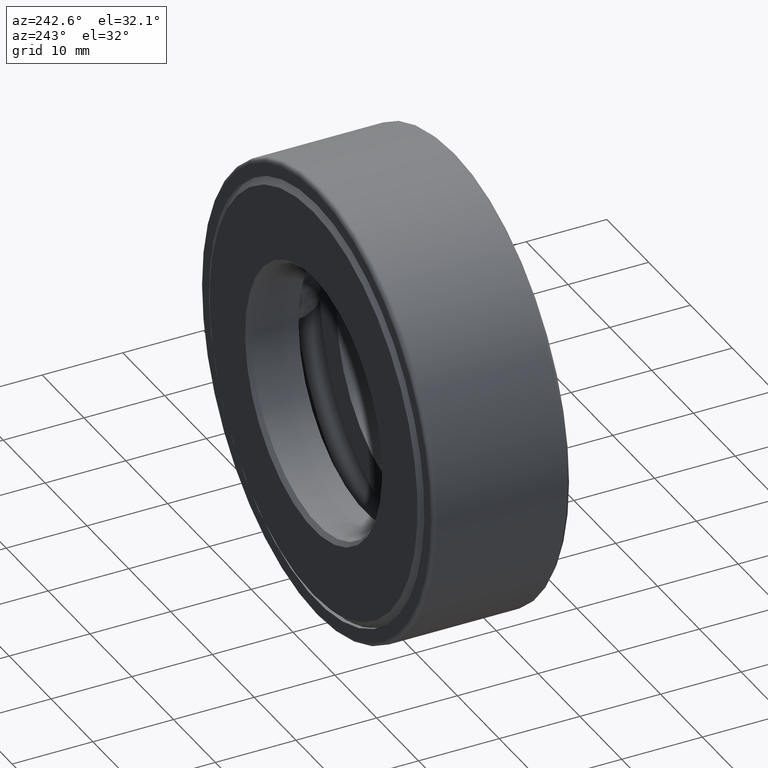
[diagram: clean part render]
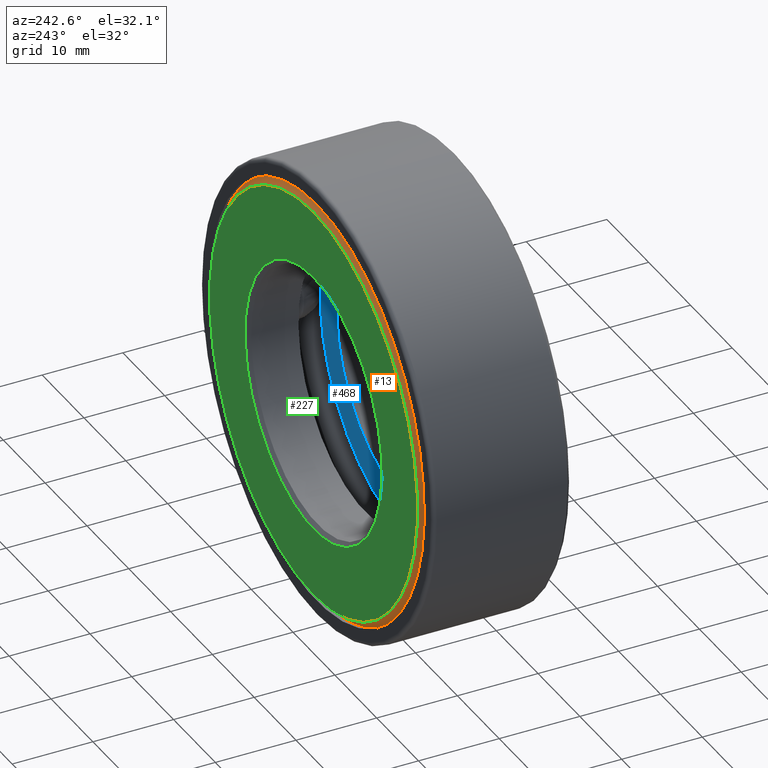
[diagram: same view with three faces highlighted in distinct colors, each labeled with its STEP entity id]
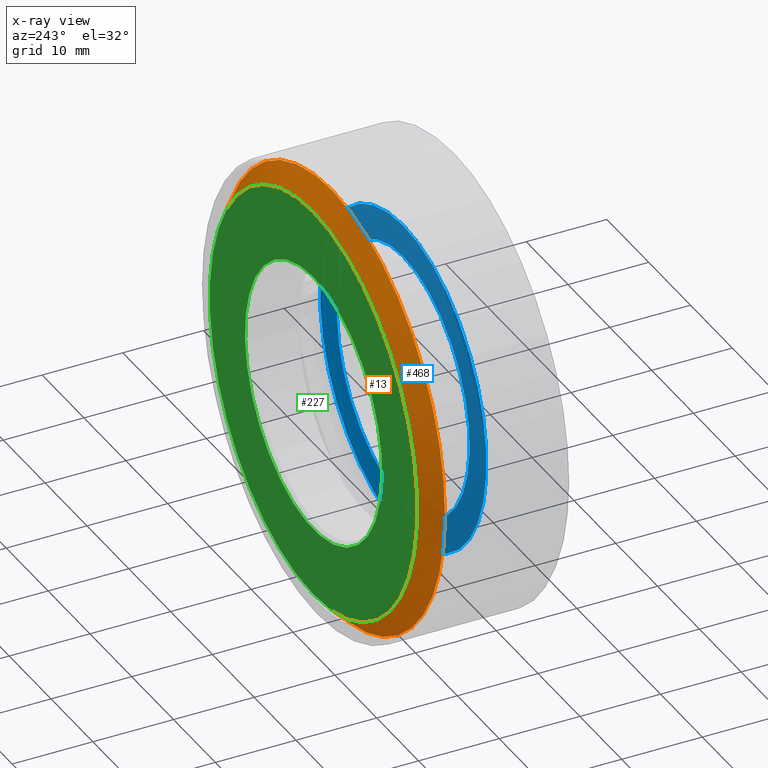
[diagram: x-ray of the same camera — body ghosted, the three highlighted faces saturated]
A machine part, auxiliary view with three faces highlighted in distinct colors.
The next image is the same camera in x-ray (body ghosted, the three faces saturated) — at least one of them is partly hidden behind the body in this view.
Their STEP definitions:

[orange] entity #13 — the highlighted conical surface has half-angle 45 deg.
#13 = ADVANCED_FACE ( 'NONE', ( #381, #456 ), #432, .T. ) ;
#73 = DIRECTION ( 'NONE',  ( 0.0000000000000000000, 0.0000000000000000000, 1.000000000000000000 ) ) ;
#79 = AXIS2_PLACEMENT_3D ( 'NONE', #439, #584, #73 ) ;
#86 = AXIS2_PLACEMENT_3D ( 'NONE', #525, #168, #513 ) ;
#104 = EDGE_CURVE ( 'NONE', #483, #483, #423, .T. ) ;
#118 = ORIENTED_EDGE ( 'NONE', *, *, #389, .T. ) ;
#168 = DIRECTION ( 'NONE',  ( -0.0000000000000000000, 1.000000000000000000, -0.0000000000000000000 ) ) ;
#207 = CIRCLE ( 'NONE', #86, 1.066749999999999900 ) ;
#240 = CARTESIAN_POINT ( 'NONE',  ( 0.0000000000000000000, 0.5995000000000001400, 1.066749999999999900 ) ) ;
#359 = EDGE_LOOP ( 'NONE', ( #118 ) ) ;
#365 = ORIENTED_EDGE ( 'NONE', *, *, #104, .F. ) ;
#376 = EDGE_LOOP ( 'NONE', ( #365 ) ) ;
#379 = CARTESIAN_POINT ( 'NONE',  ( 0.0000000000000000000, 0.6875000000000000000, 0.9787499999999997900 ) ) ;
#381 = FACE_OUTER_BOUND ( 'NONE', #359, .T. ) ;
#389 = EDGE_CURVE ( 'NONE', #488, #488, #207, .T. ) ;
#422 = CARTESIAN_POINT ( 'NONE',  ( 0.0000000000000000000, 0.6875000000000000000, 0.0000000000000000000 ) ) ;
#423 = CIRCLE ( 'NONE', #79, 0.9787499999999997900 ) ;
#432 = CONICAL_SURFACE ( 'NONE', #590, 0.9787499999999997900, 0.7853981633974490600 ) ;
#439 = CARTESIAN_POINT ( 'NONE',  ( 0.0000000000000000000, 0.6875000000000000000, 0.0000000000000000000 ) ) ;
#456 = FACE_BOUND ( 'NONE', #376, .T. ) ;
#483 = VERTEX_POINT ( 'NONE', #379 ) ;
#488 = VERTEX_POINT ( 'NONE', #240 ) ;
#513 = DIRECTION ( 'NONE',  ( 0.0000000000000000000, 0.0000000000000000000, 1.000000000000000000 ) ) ;
#517 = DIRECTION ( 'NONE',  ( 0.0000000000000000000, -1.000000000000000000, 0.0000000000000000000 ) ) ;
#525 = CARTESIAN_POINT ( 'NONE',  ( 0.0000000000000000000, 0.5995000000000001400, 0.0000000000000000000 ) ) ;
#527 = DIRECTION ( 'NONE',  ( 0.0000000000000000000, 0.0000000000000000000, -1.000000000000000000 ) ) ;
#584 = DIRECTION ( 'NONE',  ( -0.0000000000000000000, 1.000000000000000000, -0.0000000000000000000 ) ) ;
#590 = AXIS2_PLACEMENT_3D ( 'NONE', #422, #517, #527 ) ;

[blue] entity #468 — the highlighted planar face has unit normal (0, -1, 0).
#42 = CARTESIAN_POINT ( 'NONE',  ( -3.231681380517675000E-016, 0.2500000000000000600, 0.0000000000000000000 ) ) ;
#56 = EDGE_CURVE ( 'NONE', #250, #250, #549, .T. ) ;
#78 = ORIENTED_EDGE ( 'NONE', *, *, #222, .T. ) ;
#84 = DIRECTION ( 'NONE',  ( 0.0000000000000000000, -1.000000000000000000, 0.0000000000000000000 ) ) ;
#90 = FACE_BOUND ( 'NONE', #284, .T. ) ;
#134 = CARTESIAN_POINT ( 'NONE',  ( 0.0000000000000000000, 0.2499999999999999200, 0.7834999999999999700 ) ) ;
#160 = DIRECTION ( 'NONE',  ( 0.0000000000000000000, 0.0000000000000000000, 1.000000000000000000 ) ) ;
#166 = PLANE ( 'NONE',  #566 ) ;
#174 = CARTESIAN_POINT ( 'NONE',  ( 0.0000000000000000000, 0.2500000000000001100, 0.6250000000000000000 ) ) ;
#176 = CIRCLE ( 'NONE', #548, 0.7834999999999999700 ) ;
#180 = DIRECTION ( 'NONE',  ( -0.0000000000000000000, 1.000000000000000000, -0.0000000000000000000 ) ) ;
#222 = EDGE_CURVE ( 'NONE', #234, #234, #176, .T. ) ;
#234 = VERTEX_POINT ( 'NONE', #134 ) ;
#250 = VERTEX_POINT ( 'NONE', #174 ) ;
#263 = DIRECTION ( 'NONE',  ( 0.0000000000000000000, -0.0000000000000000000, -1.000000000000000000 ) ) ;
#284 = EDGE_LOOP ( 'NONE', ( #428 ) ) ;
#321 = AXIS2_PLACEMENT_3D ( 'NONE', #605, #180, #569 ) ;
#328 = FACE_OUTER_BOUND ( 'NONE', #357, .T. ) ;
#351 = CARTESIAN_POINT ( 'NONE',  ( 0.0000000000000000000, 0.2499999999999999200, 0.0000000000000000000 ) ) ;
#354 = DIRECTION ( 'NONE',  ( -0.0000000000000000000, 1.000000000000000000, -0.0000000000000000000 ) ) ;
#357 = EDGE_LOOP ( 'NONE', ( #78 ) ) ;
#428 = ORIENTED_EDGE ( 'NONE', *, *, #56, .F. ) ;
#468 = ADVANCED_FACE ( 'NONE', ( #90, #328 ), #166, .F. ) ;
#548 = AXIS2_PLACEMENT_3D ( 'NONE', #351, #354, #160 ) ;
#549 = CIRCLE ( 'NONE', #321, 0.6250000000000000000 ) ;
#566 = AXIS2_PLACEMENT_3D ( 'NONE', #42, #84, #263 ) ;
#569 = DIRECTION ( 'NONE',  ( 0.0000000000000000000, 0.0000000000000000000, 1.000000000000000000 ) ) ;
#605 = CARTESIAN_POINT ( 'NONE',  ( 0.0000000000000000000, 0.2500000000000001100, 0.0000000000000000000 ) ) ;

[green] entity #227 — the highlighted planar face has unit normal (-0, 1, 0).
#22 = ORIENTED_EDGE ( 'NONE', *, *, #333, .F. ) ;
#72 = DIRECTION ( 'NONE',  ( -0.0000000000000000000, 1.000000000000000000, 0.0000000000000000000 ) ) ;
#73 = DIRECTION ( 'NONE',  ( 0.0000000000000000000, 0.0000000000000000000, 1.000000000000000000 ) ) ;
#79 = AXIS2_PLACEMENT_3D ( 'NONE', #439, #584, #73 ) ;
#104 = EDGE_CURVE ( 'NONE', #483, #483, #423, .T. ) ;
#127 = FACE_BOUND ( 'NONE', #138, .T. ) ;
#130 = VERTEX_POINT ( 'NONE', #178 ) ;
#138 = EDGE_LOOP ( 'NONE', ( #22 ) ) ;
#158 = PLANE ( 'NONE',  #480 ) ;
#178 = CARTESIAN_POINT ( 'NONE',  ( 0.0000000000000000000, 0.6875000000000000000, 0.6450000000000002400 ) ) ;
#216 = CIRCLE ( 'NONE', #338, 0.6450000000000002400 ) ;
#218 = CARTESIAN_POINT ( 'NONE',  ( 0.0000000000000000000, 0.6875000000000000000, 0.0000000000000000000 ) ) ;
#221 = DIRECTION ( 'NONE',  ( -0.0000000000000000000, 1.000000000000000000, -0.0000000000000000000 ) ) ;
#227 = ADVANCED_FACE ( 'NONE', ( #411, #127 ), #158, .T. ) ;
#333 = EDGE_CURVE ( 'NONE', #130, #130, #216, .T. ) ;
#338 = AXIS2_PLACEMENT_3D ( 'NONE', #218, #221, #461 ) ;
#379 = CARTESIAN_POINT ( 'NONE',  ( 0.0000000000000000000, 0.6875000000000000000, 0.9787499999999997900 ) ) ;
#411 = FACE_OUTER_BOUND ( 'NONE', #516, .T. ) ;
#423 = CIRCLE ( 'NONE', #79, 0.9787499999999997900 ) ;
#439 = CARTESIAN_POINT ( 'NONE',  ( 0.0000000000000000000, 0.6875000000000000000, 0.0000000000000000000 ) ) ;
#449 = CARTESIAN_POINT ( 'NONE',  ( 0.0000000000000000000, 0.6875000000000000000, 0.0000000000000000000 ) ) ;
#461 = DIRECTION ( 'NONE',  ( 0.0000000000000000000, 0.0000000000000000000, 1.000000000000000000 ) ) ;
#480 = AXIS2_PLACEMENT_3D ( 'NONE', #449, #72, #502 ) ;
#483 = VERTEX_POINT ( 'NONE', #379 ) ;
#502 = DIRECTION ( 'NONE',  ( 0.0000000000000000000, 0.0000000000000000000, 1.000000000000000000 ) ) ;
#511 = ORIENTED_EDGE ( 'NONE', *, *, #104, .T. ) ;
#516 = EDGE_LOOP ( 'NONE', ( #511 ) ) ;
#584 = DIRECTION ( 'NONE',  ( -0.0000000000000000000, 1.000000000000000000, -0.0000000000000000000 ) ) ;